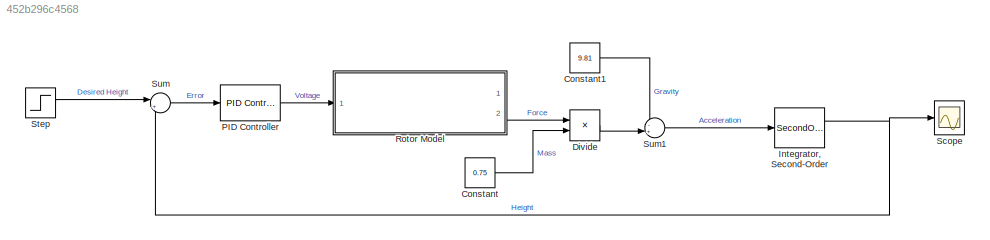
MODEL slx_452b296c4568
KIND model
CONFIG AbsTol = auto
CONFIG EnableMultiTasking = off
CONFIG FixedStep = 0.02
CONFIG MaxStep = auto
CONFIG MinStep = auto
CONFIG RelTol = 1e-3
CONFIG SampleTimeConstraint = Unconstrained
CONFIG SolverName = VariableStepAuto
CONFIG StartTime = 0.0
CONFIG StopTime = 20
WORKSPACE source: mxarray member
WORKSPACE D = 0.711
WORKSPACE DragCoeff = 4e-05
WORKSPACE J = 0.003408
WORKSPACE Ke = 0.0796
WORKSPACE Kt = 0.079
WORKSPACE La = 4.55e-05
WORKSPACE LiftCoeff = 0.0026
WORKSPACE Ra = 0.06
WORKSPACE Rho = 1.2256
WORKSPACE kf = 0.03408
BLOCK [Constant] Constant
  Value = 0.75
BLOCK [Constant] Constant1
  Value = 9.81
BLOCK [Product] Divide
  Inputs = */
  Ports = [2, 1]
BLOCK [SecondOrderIntegrator] Integrator, Second-Order
  Ports = [1, 2]
BLOCK [Reference] PID Controller  REF=pid_lib/PID Controller
  Ports = [1, 1]
  SourceBlock = pid_lib/PID Controller
  SourceProductBaseCode = SL
  SourceType = PID 1dof
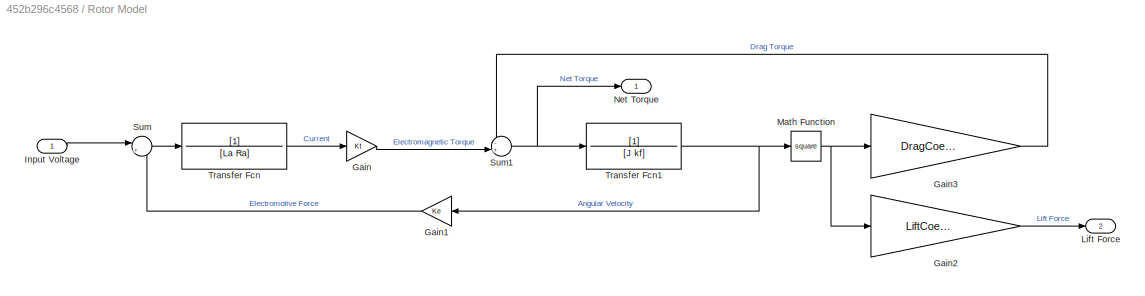
BLOCK [SubSystem] Rotor Model
  Ports = [1, 2]
  RequestExecContextInheritance = off
BLOCK [Gain] Rotor Model/Gain
  Gain = Kt
BLOCK [Gain] Rotor Model/Gain1
  Gain = Ke
BLOCK [Gain] Rotor Model/Gain2
  Gain = LiftCoeff*Rho*D^4
BLOCK [Gain] Rotor Model/Gain3
  Gain = DragCoeff*Rho*D^5
BLOCK [Inport] Rotor Model/Input Voltage
BLOCK [Outport] Rotor Model/Lift Force
  Port = 2
BLOCK [Math] Rotor Model/Math Function
  Operator = square
  Ports = [1, 1]
BLOCK [Outport] Rotor Model/Net Torque
BLOCK [Sum] Rotor Model/Sum
  Inputs = |+-
  Ports = [2, 1]
BLOCK [Sum] Rotor Model/Sum1
  Inputs = -+|
  Ports = [2, 1]
BLOCK [TransferFcn] Rotor Model/Transfer Fcn
  Denominator = [La Ra]
BLOCK [TransferFcn] Rotor Model/Transfer Fcn1
  Denominator = [J kf]
BLOCK [Scope] Scope
  Floating = off
  NumInputPorts = 1
  Ports = [1]
  ScopeSpecificationString = Simulink.scopes.TimeScopeBlockCfg('CurrentConfiguration', extmgr.ConfigurationSet(extmgr.Configuration('Core','General UI',true),extmgr.Configuration('Core','Source UI',true),extmgr.Configuration('Sources','WiredSimulink',true),extmgr.Configuration('Visuals','Time Domain',true,'SerializedDisplays',{struct('MinYLimReal','-26.65349','MaxYLimReal','239.16185','YLabelReal','','MinYLimMag','0.00000','M...<+1364ch>
BLOCK [Step] Step
  After = 30
  SampleTime = 0
  Time = 0.1
BLOCK [Sum] Sum
  Inputs = |+-
  Ports = [2, 1]
BLOCK [Sum] Sum1
  Inputs = -+|
  Ports = [2, 1]
LINE Constant1:1 -> Sum1:1
LINE Constant:1 -> Divide:2
LINE Divide:1 -> Sum1:2
NET Integrator, Second-Order:1 -> Scope:1, Sum:2
LINE PID Controller:1 -> Rotor Model:1
LINE Rotor Model/Gain1:1 -> Rotor Model/Sum:2
LINE Rotor Model/Gain2:1 -> Rotor Model/Lift Force:1
LINE Rotor Model/Gain3:1 -> Rotor Model/Sum1:1
LINE Rotor Model/Gain:1 -> Rotor Model/Sum1:2
LINE Rotor Model/Input Voltage:1 -> Rotor Model/Sum:1
NET Rotor Model/Math Function:1 -> Rotor Model/Gain2:1, Rotor Model/Gain3:1
NET Rotor Model/Sum1:1 -> Rotor Model/Net Torque:1, Rotor Model/Transfer Fcn1:1
LINE Rotor Model/Sum:1 -> Rotor Model/Transfer Fcn:1
NET Rotor Model/Transfer Fcn1:1 -> Rotor Model/Gain1:1, Rotor Model/Math Function:1
LINE Rotor Model/Transfer Fcn:1 -> Rotor Model/Gain:1
LINE Rotor Model:2 -> Divide:1
LINE Step:1 -> Sum:1
LINE Sum1:1 -> Integrator, Second-Order:1
LINE Sum:1 -> PID Controller:1
note: NET lines group one-source signal fan-out (src -> all destinations, sorted); 1:1 wires keep LINE
